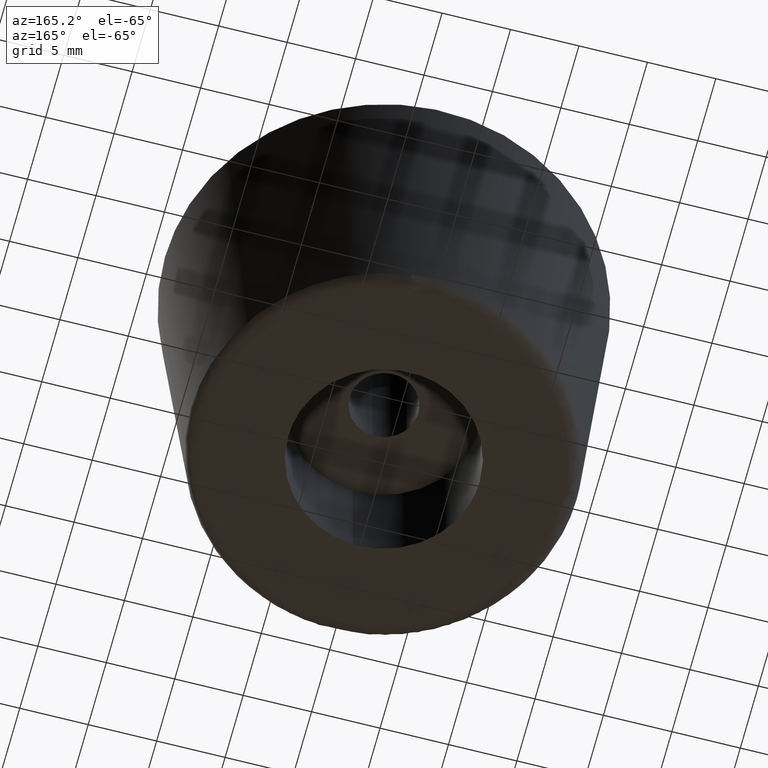
[diagram: clean part render]
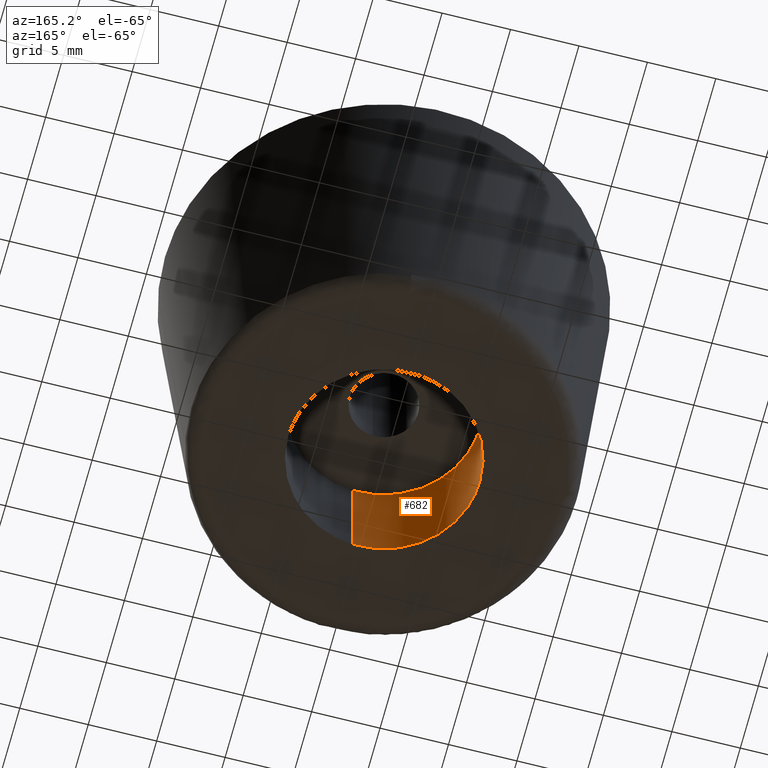
[diagram: same view with one face highlighted and labeled with its STEP entity id]
A machine part, auxiliary view. The second image highlights one B-rep face of the part: STEP entity #682.
In plain terms, the highlighted face is a freeform B-spline surface patch.
Its self-contained STEP definition (entity closure, byte-faithful):
#519=CARTESIAN_POINT('',(-0.826232407674893,6.951067544518226,4.183897E-014));
#520=VERTEX_POINT('',#519);
#538=CARTESIAN_POINT('',(0.427328470493930,-6.986944280454582,2.503553E-014));
#539=VERTEX_POINT('',#538);
#553=CARTESIAN_POINT('',(0.427328609956511,-6.986944271925134,9.0));
#554=VERTEX_POINT('',#553);
#555=CARTESIAN_POINT('',(0.427328609956511,-6.986944271925134,9.0));
#556=CARTESIAN_POINT('',(0.427328470493930,-6.986944280454582,2.503553E-014));
#557=QUASI_UNIFORM_CURVE('',1,(#555,#556),.UNSPECIFIED.,.F.,.U.);
#558=EDGE_CURVE('',#554,#539,#557,.T.);
#575=CARTESIAN_POINT('',(-0.826232496864986,6.951067533916820,9.0));
#576=VERTEX_POINT('',#575);
#592=CARTESIAN_POINT('',(-0.826232496864986,6.951067533916820,9.0));
#593=CARTESIAN_POINT('',(-0.826232407674893,6.951067544518226,4.183897E-014));
#594=QUASI_UNIFORM_CURVE('',1,(#592,#593),.UNSPECIFIED.,.F.,.U.);
#595=EDGE_CURVE('',#576,#520,#594,.T.);
#600=CARTESIAN_POINT('',(0.427339776743999,-6.986943588953067,9.225000000000001));
#601=CARTESIAN_POINT('',(-6.559603812209068,-7.414283365697066,9.225000000000001));
#602=CARTESIAN_POINT('',(-6.986943588953067,-0.427339776743999,9.225000000000001));
#603=CARTESIAN_POINT('',(-7.390503377127691,6.170804435876506,9.225000000000001));
#604=CARTESIAN_POINT('',(-0.826239642597309,6.951066684545665,9.225000000000003));
#605=CARTESIAN_POINT('',(0.427339776743999,-6.986943588953067,-0.230625000000002));
#606=CARTESIAN_POINT('',(-6.559603812209068,-7.414283365697066,-0.230625000000002));
#607=CARTESIAN_POINT('',(-6.986943588953067,-0.427339776743999,-0.230625000000002));
#608=CARTESIAN_POINT('',(-7.390503377127691,6.170804435876506,-0.230625000000002));
#609=CARTESIAN_POINT('',(-0.826239642597309,6.951066684545665,-0.230625000000002));
#617=(BOUNDED_SURFACE()B_SPLINE_SURFACE(2,1,((#600,#605),(#601,#606),(#602,#607),(#603,#608),(#604,#609)),.UNSPECIFIED.,.F.,.F.,.U.)B_SPLINE_SURFACE_WITH_KNOTS((3,2,3),(2,2),(0.0,11.597979746446660,22.732040303035451),(0.0,9.455625000000005),.UNSPECIFIED.)GEOMETRIC_REPRESENTATION_ITEM()RATIONAL_B_SPLINE_SURFACE(((1.0,1.0),(0.707106781186548,0.707106781186548),(1.0,1.0),(0.718822509939086,0.718822509939086),(0.977505800795127,0.977505800795127)))REPRESENTATION_ITEM('')SURFACE());
#618=CARTESIAN_POINT('',(-7.0,0.0,0.0));
#619=VERTEX_POINT('',#618);
#620=CARTESIAN_POINT('',(-7.0,0.0,0.0));
#621=CARTESIAN_POINT('',(-7.000000000000001,6.217228198326260,0.0));
#622=CARTESIAN_POINT('',(-0.826232407674893,6.951067544518226,4.183897E-014));
#630=(BOUNDED_CURVE()B_SPLINE_CURVE(2,(#620,#621,#622),.UNSPECIFIED.,.F.,.U.)B_SPLINE_CURVE_WITH_KNOTS((3,3),(0.0,0.229562649420369),.UNSPECIFIED.)CURVE()GEOMETRIC_REPRESENTATION_ITEM()RATIONAL_B_SPLINE_CURVE((1.0,0.731050626767696,0.956027098968635))REPRESENTATION_ITEM(''));
#631=EDGE_CURVE('',#619,#520,#630,.T.);
#632=ORIENTED_EDGE('',*,*,#631,.T.);
#633=ORIENTED_EDGE('',*,*,#595,.F.);
#634=CARTESIAN_POINT('',(-7.0,0.0,9.0));
#635=VERTEX_POINT('',#634);
#636=CARTESIAN_POINT('',(-7.0,0.0,9.0));
#637=CARTESIAN_POINT('',(-6.999999999999999,6.217228117990596,9.0));
#638=CARTESIAN_POINT('',(-0.826232496864986,6.951067533916821,9.0));
#646=(BOUNDED_CURVE()B_SPLINE_CURVE(2,(#636,#637,#638),.UNSPECIFIED.,.F.,.U.)B_SPLINE_CURVE_WITH_KNOTS((3,3),(0.0,0.229562647251865),.UNSPECIFIED.)CURVE()GEOMETRIC_REPRESENTATION_ITEM()RATIONAL_B_SPLINE_CURVE((1.0,0.731050629308256,0.956027094718271))REPRESENTATION_ITEM(''));
#647=EDGE_CURVE('',#635,#576,#646,.T.);
#648=ORIENTED_EDGE('',*,*,#647,.F.);
#649=CARTESIAN_POINT('',(0.427328609956511,-6.986944271925134,9.0));
#650=CARTESIAN_POINT('',(0.213863744041770,-6.999999999999998,9.0));
#651=CARTESIAN_POINT('',(0.0,-7.0,9.0));
#652=CARTESIAN_POINT('',(-6.999999999999999,-6.999999999999999,9.0));
#653=CARTESIAN_POINT('',(-7.0,0.0,9.0));
#661=(BOUNDED_CURVE()B_SPLINE_CURVE(2,(#649,#650,#651,#652,#653),.UNSPECIFIED.,.F.,.U.)B_SPLINE_CURVE_WITH_KNOTS((3,2,3),(0.739333238012583,0.750000000000000,1.0),.UNSPECIFIED.)CURVE()GEOMETRIC_REPRESENTATION_ITEM()RATIONAL_B_SPLINE_CURVE((0.976072632702837,0.987503110988754,1.0,0.707106781186547,1.0))REPRESENTATION_ITEM(''));
#662=EDGE_CURVE('',#554,#635,#661,.T.);
#663=ORIENTED_EDGE('',*,*,#662,.F.);
#664=ORIENTED_EDGE('',*,*,#558,.T.);
#665=CARTESIAN_POINT('',(0.427328470493929,-6.986944280454582,2.503553E-014));
#666=CARTESIAN_POINT('',(0.213863674114976,-7.000000000000001,0.0));
#667=CARTESIAN_POINT('',(0.0,-7.0,0.0));
#668=CARTESIAN_POINT('',(-6.999999999999999,-6.999999999999999,0.0));
#669=CARTESIAN_POINT('',(-7.0,0.0,0.0));
#677=(BOUNDED_CURVE()B_SPLINE_CURVE(2,(#665,#666,#667,#668,#669),.UNSPECIFIED.,.F.,.U.)B_SPLINE_CURVE_WITH_KNOTS((3,2,3),(0.739333241456697,0.750000000000000,1.0),.UNSPECIFIED.)CURVE()GEOMETRIC_REPRESENTATION_ITEM()RATIONAL_B_SPLINE_CURVE((0.976072640084247,0.987503115023785,1.0,0.707106781186547,1.0))REPRESENTATION_ITEM(''));
#678=EDGE_CURVE('',#539,#619,#677,.T.);
#679=ORIENTED_EDGE('',*,*,#678,.T.);
#680=EDGE_LOOP('',(#632,#633,#648,#663,#664,#679));
#681=FACE_OUTER_BOUND('',#680,.T.);
#682=ADVANCED_FACE('',(#681),#617,.F.);